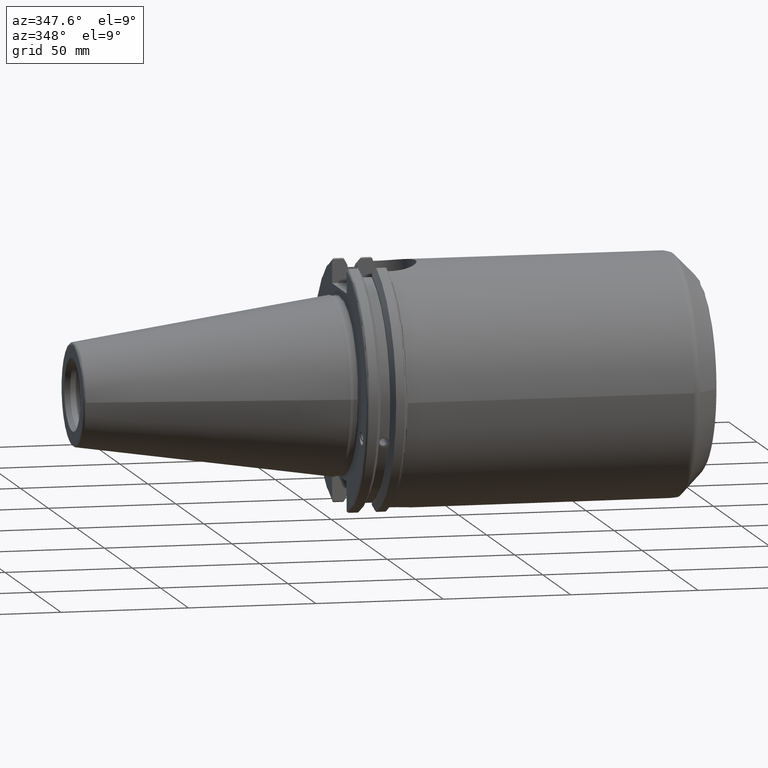
[diagram: clean part render]
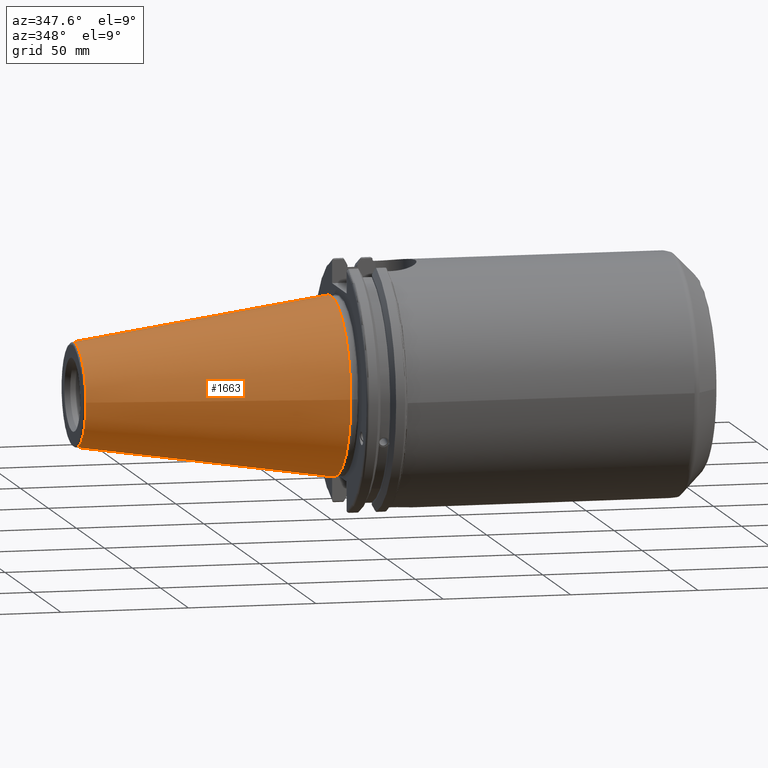
[diagram: same view with one face highlighted and labeled with its STEP entity id]
A machine part, auxiliary view. The second image highlights one B-rep face of the part: STEP entity #1663.
In plain terms, the highlighted conical surface has half-angle 8.297 deg.
Its self-contained STEP definition (entity closure, byte-faithful):
#79=CONICAL_SURFACE('',#1856,27.5166666666666,0.14481249823894);
#184=LINE('',#3517,#275);
#275=VECTOR('',#2267,27.5166666666666);
#384=FACE_OUTER_BOUND('',#494,.T.);
#494=EDGE_LOOP('',(#1467,#1468,#1469,#1470,#1471));
#593=CIRCLE('',#1850,20.233121911427);
#594=CIRCLE('',#1851,20.233121911427);
#598=CIRCLE('',#1857,34.925);
#820=VERTEX_POINT('',#3504);
#821=VERTEX_POINT('',#3505);
#824=VERTEX_POINT('',#3515);
#1051=EDGE_CURVE('',#820,#821,#593,.T.);
#1052=EDGE_CURVE('',#821,#820,#594,.T.);
#1056=EDGE_CURVE('',#824,#824,#598,.T.);
#1057=EDGE_CURVE('',#824,#821,#184,.T.);
#1467=ORIENTED_EDGE('',*,*,#1056,.F.);
#1468=ORIENTED_EDGE('',*,*,#1057,.T.);
#1469=ORIENTED_EDGE('',*,*,#1051,.F.);
#1470=ORIENTED_EDGE('',*,*,#1052,.F.);
#1471=ORIENTED_EDGE('',*,*,#1057,.F.);
#1663=ADVANCED_FACE('',(#384),#79,.T.);
#1850=AXIS2_PLACEMENT_3D('',#3506,#2251,#2252);
#1851=AXIS2_PLACEMENT_3D('',#3507,#2253,#2254);
#1856=AXIS2_PLACEMENT_3D('',#3514,#2263,#2264);
#1857=AXIS2_PLACEMENT_3D('',#3516,#2265,#2266);
#2251=DIRECTION('center_axis',(-1.,0.,0.));
#2252=DIRECTION('ref_axis',(0.,-1.,3.06161699786838E-17));
#2253=DIRECTION('center_axis',(-1.,0.,0.));
#2254=DIRECTION('ref_axis',(0.,-1.,3.06161699786838E-17));
#2263=DIRECTION('center_axis',(1.,0.,0.));
#2264=DIRECTION('ref_axis',(0.,1.,0.));
#2265=DIRECTION('center_axis',(1.,0.,0.));
#2266=DIRECTION('ref_axis',(0.,0.,-1.));
#2267=DIRECTION('',(-0.989532981063281,0.144306893071729,1.76724974695192E-17));
#3504=CARTESIAN_POINT('',(-100.744306893072,-2.47784279855872E-15,20.233121911427));
#3505=CARTESIAN_POINT('',(-100.744306893072,-20.233121911427,-2.47784279855872E-15));
#3506=CARTESIAN_POINT('Origin',(-100.744306893072,0.,-3.09730349819841E-15));
#3507=CARTESIAN_POINT('Origin',(-100.744306893072,0.,-3.09730349819841E-15));
#3514=CARTESIAN_POINT('Origin',(-50.8,0.,0.));
#3515=CARTESIAN_POINT('',(-8.88178419700125E-15,-34.925,-4.27707894602213E-15));
#3516=CARTESIAN_POINT('Origin',(0.,0.,0.));
#3517=CARTESIAN_POINT('',(-50.8,-27.5166666666666,-3.3698197756538E-15));